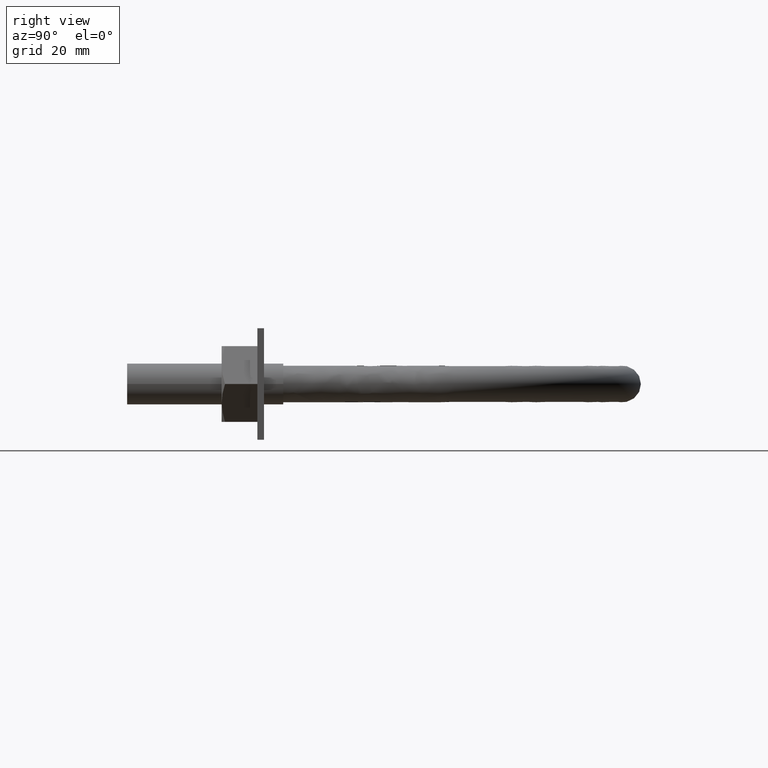
[diagram: clean part render]
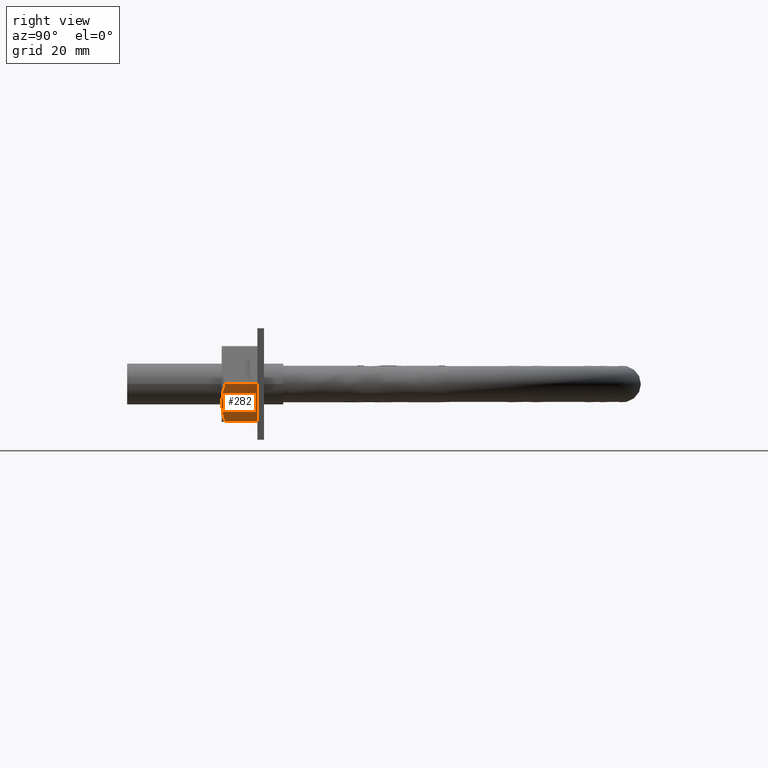
[diagram: same view with one face highlighted and labeled with its STEP entity id]
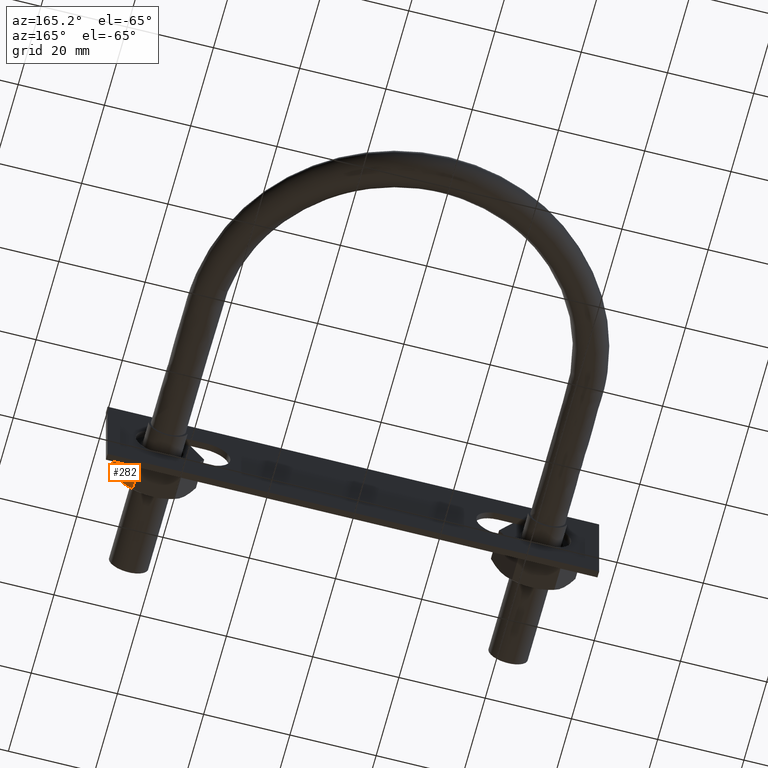
[diagram: same view with one face highlighted and labeled with its STEP entity id]
A machine part, right view. The second image highlights one B-rep face of the part: STEP entity #282.
A second angle (auxiliary view) of the same face is appended — the face is thin or edge-on in the first view.
In plain terms, the highlighted planar face has unit normal (-0.866, 0, 0.5).
Its self-contained STEP definition (entity closure, byte-faithful):
#282 = ADVANCED_FACE( '', ( #433 ), #434, .F. );
#433 = FACE_OUTER_BOUND( '', #743, .T. );
#434 = PLANE( '', #744 );
#743 = EDGE_LOOP( '', ( #1237, #1238, #1239, #1240, #1241 ) );
#744 = AXIS2_PLACEMENT_3D( '', #1242, #1243, #1244 );
#1237 = ORIENTED_EDGE( '', *, *, #1408, .F. );
#1238 = ORIENTED_EDGE( '', *, *, #1441, .F. );
#1239 = ORIENTED_EDGE( '', *, *, #1442, .F. );
#1240 = ORIENTED_EDGE( '', *, *, #1415, .F. );
#1241 = ORIENTED_EDGE( '', *, *, #1435, .F. );
#1242 = CARTESIAN_POINT( '', ( 53.8149545762236, -5.80000000000000, 3.67977546610776E-032 ) );
#1243 = DIRECTION( '', ( -0.866025403784439, 5.30270106023007E-017, 0.500000000000000 ) );
#1244 = DIRECTION( '', ( 0.500000000000000, -3.06151588455594E-017, 0.866025403784439 ) );
#1408 = EDGE_CURVE( '', #1637, #1650, #1651, .T. );
#1415 = EDGE_CURVE( '', #1661, #1663, #1664, .T. );
#1435 = EDGE_CURVE( '', #1650, #1661, #1694, .T. );
#1441 = EDGE_CURVE( '', #1702, #1637, #1703, .T. );
#1442 = EDGE_CURVE( '', #1663, #1702, #1704, .F. );
#1637 = VERTEX_POINT( '', #2049 );
#1650 = VERTEX_POINT( '', #2070 );
#1651 = B_SPLINE_CURVE_WITH_KNOTS( '', 3, ( #2071, #2072, #2073, #2074, #2075, #2076, #2077, #2078 ), .UNSPECIFIED., .F., .F., ( 4, 2, 2, 4 ), ( 0.00493529902949373, 0.00616408349151780, 0.00739286795354186, 0.00985043687758998 ), .UNSPECIFIED. );
#1661 = VERTEX_POINT( '', #2089 );
#1663 = VERTEX_POINT( '', #2091 );
#1664 = LINE( '', #2092, #2093 );
#1694 = LINE( '', #2161, #2162 );
#1702 = VERTEX_POINT( '', #2182 );
#1703 = B_SPLINE_CURVE_WITH_KNOTS( '', 3, ( #2183, #2184, #2185, #2186, #2187, #2188 ), .UNSPECIFIED., .F., .F., ( 4, 2, 4 ), ( 7.17194508351968E-007, 0.00246800811200104, 0.00493529902949373 ), .UNSPECIFIED. );
#1704 = LINE( '', #2189, #2190 );
#2049 = CARTESIAN_POINT( '', ( 51.3612159321677, -13.8000000000000, -4.25000000000000 ) );
#2070 = CARTESIAN_POINT( '', ( 53.7999656118192, -13.0494446500535, -0.0259616479013788 ) );
#2071 = CARTESIAN_POINT( '', ( 51.3612159321677, -13.8000000000000, -4.25000000000000 ) );
#2072 = CARTESIAN_POINT( '', ( 51.5680707460432, -13.8000000000000, -3.89171695257749 ) );
#2073 = CARTESIAN_POINT( '', ( 51.7759593429690, -13.7822887858780, -3.53164334038783 ) );
#2074 = CARTESIAN_POINT( '', ( 52.1872154329965, -13.7136979023202, -2.81932689753803 ) );
#2075 = CARTESIAN_POINT( '', ( 52.3914764911661, -13.6628885136661, -2.46553636678045 ) );
#2076 = CARTESIAN_POINT( '', ( 53.0006497745581, -13.4668508935345, -1.41041728933201 ) );
#2077 = CARTESIAN_POINT( '', ( 53.4019654977714, -13.2781749556151, -0.715318066850384 ) );
#2078 = CARTESIAN_POINT( '', ( 53.7999656118192, -13.0494446500535, -0.0259616479013792 ) );
#2089 = CARTESIAN_POINT( '', ( 53.7999656118192, -5.80000000000000, -0.0259616479013813 ) );
#2091 = CARTESIAN_POINT( '', ( 48.9224662525163, -5.80000000000000, -8.47403835209862 ) );
#2092 = CARTESIAN_POINT( '', ( 48.9112159321677, -5.80000000000000, -8.49352447854375 ) );
#2093 = VECTOR( '', #2415, 1000.00000000000 );
#2161 = CARTESIAN_POINT( '', ( 53.7999656118192, -5.80000000000000, -0.0259616479013807 ) );
#2162 = VECTOR( '', #2440, 1000.00000000000 );
#2182 = CARTESIAN_POINT( '', ( 48.9224662525163, -13.0494446500535, -8.47403835209862 ) );
#2183 = CARTESIAN_POINT( '', ( 48.9224662525163, -13.0494446500535, -8.47403835209862 ) );
#2184 = CARTESIAN_POINT( '', ( 49.3215180192883, -13.2787793394845, -7.78286041719930 ) );
#2185 = CARTESIAN_POINT( '', ( 49.7234521124811, -13.4675470520195, -7.08669014649529 ) );
#2186 = CARTESIAN_POINT( '', ( 50.5355975738497, -13.7285849074241, -5.68001294426847 ) );
#2187 = CARTESIAN_POINT( '', ( 50.9458696942491, -13.8000000000000, -4.96940078680768 ) );
#2188 = CARTESIAN_POINT( '', ( 51.3612159321677, -13.8000000000000, -4.25000000000000 ) );
#2189 = CARTESIAN_POINT( '', ( 48.9224662525163, -5.80000000000000, -8.47403835209862 ) );
#2190 = VECTOR( '', #2446, 1000.00000000000 );
#2415 = DIRECTION( '', ( -0.500000000000000, 3.06151588455594E-017, -0.866025403784439 ) );
#2440 = DIRECTION( '', ( 6.12303176911189E-017, 1.00000000000000, -4.95179021115217E-066 ) );
#2446 = DIRECTION( '', ( 6.12303176911189E-017, 1.00000000000000, -4.95179021115217E-066 ) );